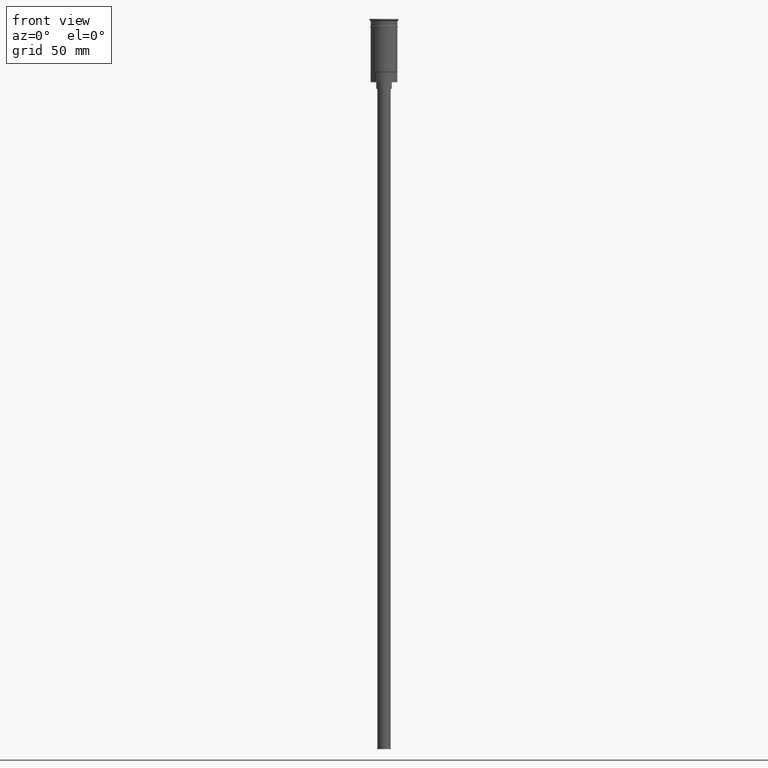
[diagram: clean part render]
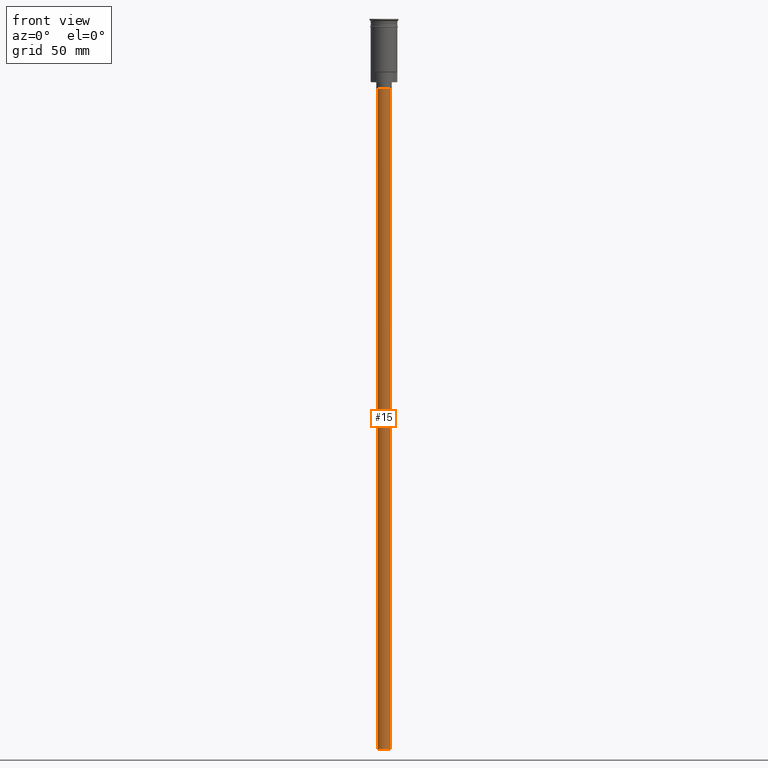
[diagram: same view with one face highlighted and labeled with its STEP entity id]
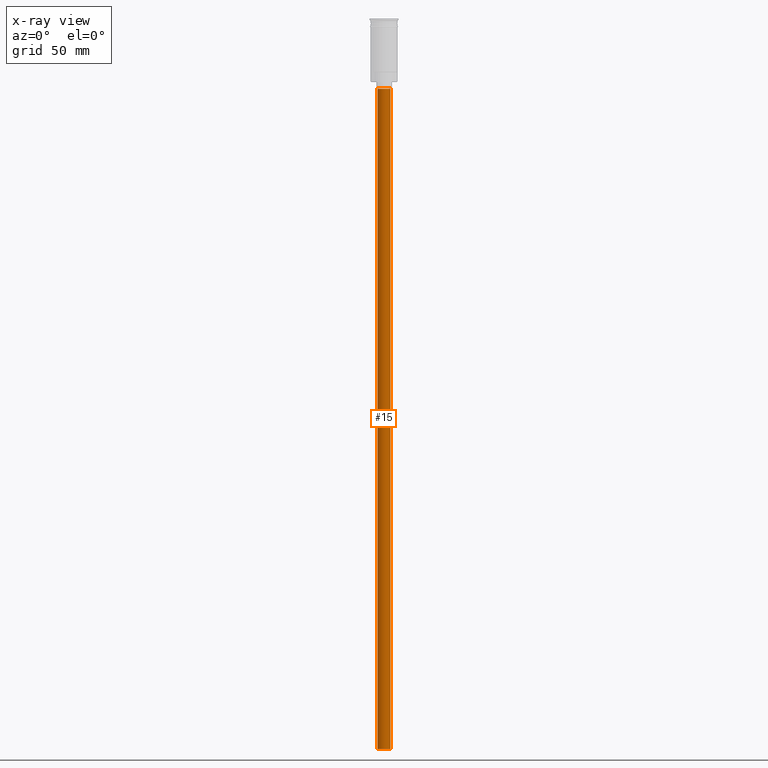
[diagram: x-ray of the same camera — body ghosted, the highlighted face saturated]
A machine part, front view. The second image highlights one B-rep face of the part: STEP entity #15.
The next image is the same camera in x-ray: the body ghosted, the highlighted face saturated — about 0% of this face is hidden behind the body in this view.
In plain terms, the highlighted cylindrical surface (edge-blend (fillet) strip) has radius 3 mm, axis along (-0, -0, 1).
Its self-contained STEP definition (entity closure, byte-faithful):
#15 = ADVANCED_FACE ( 'NONE', ( #1047 ), #687, .T. ) ;
#27 = LINE ( 'NONE', #396, #632 ) ;
#190 = VERTEX_POINT ( 'NONE', #743 ) ;
#217 = CARTESIAN_POINT ( 'NONE',  ( 0.000000000000000000, 0.000000000000000000, -328.5000000000000000 ) ) ;
#218 = VERTEX_POINT ( 'NONE', #860 ) ;
#337 = AXIS2_PLACEMENT_3D ( 'NONE', #423, #1020, #896 ) ;
#368 = ORIENTED_EDGE ( 'NONE', *, *, #746, .T. ) ;
#391 = CARTESIAN_POINT ( 'NONE',  ( 0.000000000000000000, 0.000000000000000000, -328.5000000000000000 ) ) ;
#395 = EDGE_LOOP ( 'NONE', ( #1533, #555, #682, #368 ) ) ;
#396 = CARTESIAN_POINT ( 'NONE',  ( -3.000000000000000444, 3.673940397442060361E-16, -328.5000000000000000 ) ) ;
#423 = CARTESIAN_POINT ( 'NONE',  ( 0.000000000000000000, 0.000000000000000000, -31.50000000000000000 ) ) ;
#472 = DIRECTION ( 'NONE',  ( -0.000000000000000000, -0.000000000000000000, 1.000000000000000000 ) ) ;
#555 = ORIENTED_EDGE ( 'NONE', *, *, #1112, .F. ) ;
#632 = VECTOR ( 'NONE', #1253, 1000.000000000000000 ) ;
#659 = VERTEX_POINT ( 'NONE', #1033 ) ;
#682 = ORIENTED_EDGE ( 'NONE', *, *, #790, .T. ) ;
#687 = CYLINDRICAL_SURFACE ( 'NONE', #1287, 3.000000000000000444 ) ;
#743 = CARTESIAN_POINT ( 'NONE',  ( -3.000000000000000444, 3.673940397442060361E-16, -31.50000000000000000 ) ) ;
#746 = EDGE_CURVE ( 'NONE', #218, #190, #1532, .T. ) ;
#790 = EDGE_CURVE ( 'NONE', #1314, #218, #796, .T. ) ;
#794 = DIRECTION ( 'NONE',  ( 1.000000000000000000, 0.000000000000000000, 0.000000000000000000 ) ) ;
#796 = LINE ( 'NONE', #938, #1490 ) ;
#860 = CARTESIAN_POINT ( 'NONE',  ( 3.000000000000000444, 0.000000000000000000, -31.50000000000000000 ) ) ;
#871 = DIRECTION ( 'NONE',  ( 0.000000000000000000, 0.000000000000000000, -1.000000000000000000 ) ) ;
#896 = DIRECTION ( 'NONE',  ( -1.000000000000000000, 0.000000000000000000, 0.000000000000000000 ) ) ;
#938 = CARTESIAN_POINT ( 'NONE',  ( 3.000000000000000444, 0.000000000000000000, -328.5000000000000000 ) ) ;
#968 = EDGE_CURVE ( 'NONE', #659, #190, #27, .T. ) ;
#1000 = CIRCLE ( 'NONE', #1124, 3.000000000000000444 ) ;
#1020 = DIRECTION ( 'NONE',  ( 0.000000000000000000, 0.000000000000000000, -1.000000000000000000 ) ) ;
#1033 = CARTESIAN_POINT ( 'NONE',  ( -3.000000000000000444, 3.673940397442060361E-16, -328.5000000000000000 ) ) ;
#1047 = FACE_OUTER_BOUND ( 'NONE', #395, .T. ) ;
#1088 = DIRECTION ( 'NONE',  ( -0.000000000000000000, -0.000000000000000000, 1.000000000000000000 ) ) ;
#1095 = DIRECTION ( 'NONE',  ( -1.000000000000000000, 0.000000000000000000, 0.000000000000000000 ) ) ;
#1112 = EDGE_CURVE ( 'NONE', #1314, #659, #1000, .T. ) ;
#1124 = AXIS2_PLACEMENT_3D ( 'NONE', #391, #871, #1095 ) ;
#1253 = DIRECTION ( 'NONE',  ( -0.000000000000000000, -0.000000000000000000, 1.000000000000000000 ) ) ;
#1287 = AXIS2_PLACEMENT_3D ( 'NONE', #217, #472, #794 ) ;
#1314 = VERTEX_POINT ( 'NONE', #1440 ) ;
#1440 = CARTESIAN_POINT ( 'NONE',  ( 3.000000000000000444, 0.000000000000000000, -328.5000000000000000 ) ) ;
#1490 = VECTOR ( 'NONE', #1088, 1000.000000000000000 ) ;
#1532 = CIRCLE ( 'NONE', #337, 3.000000000000000444 ) ;
#1533 = ORIENTED_EDGE ( 'NONE', *, *, #968, .F. ) ;